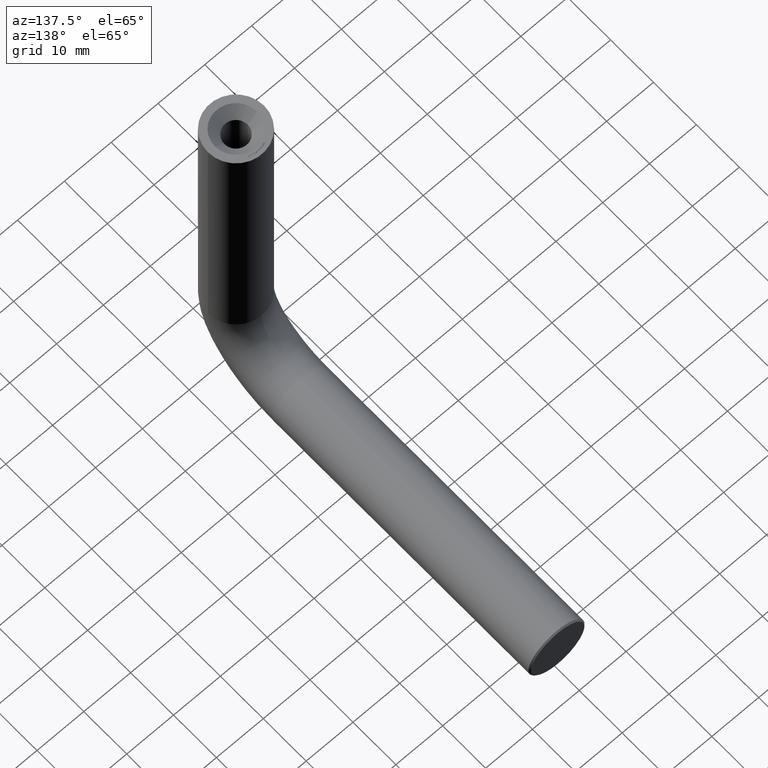
[diagram: clean part render]
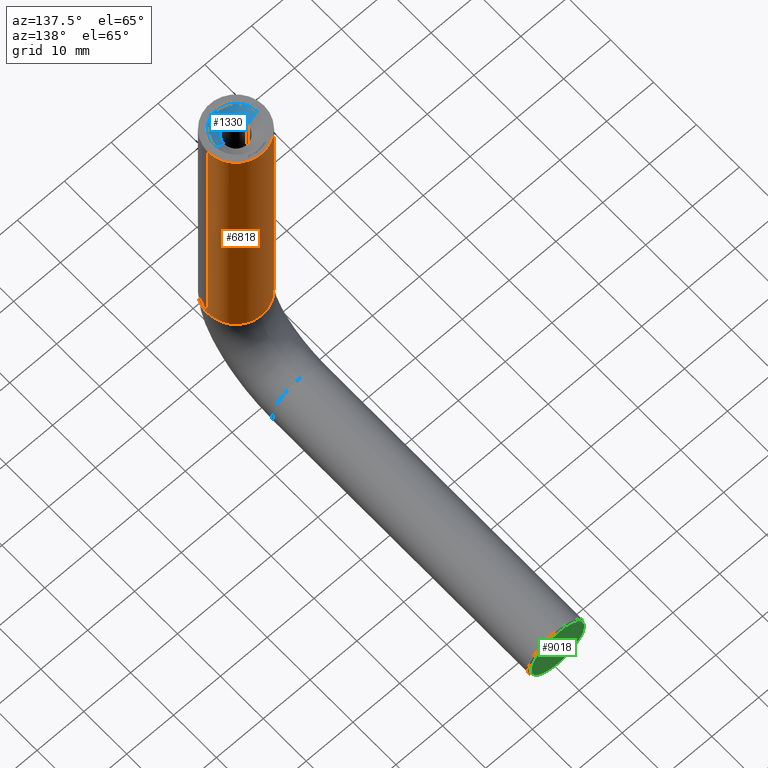
[diagram: same view with three faces highlighted in distinct colors, each labeled with its STEP entity id]
A machine part, auxiliary view with three faces highlighted in distinct colors.
Their STEP definitions:

[orange] entity #6818 — the highlighted cylindrical surface (partial cylindrical patch) has radius 6 mm, axis along (-0, -0, 1).
#44 = LINE ( 'NONE', #1518, #11654 ) ;
#173 = CARTESIAN_POINT ( 'NONE',  ( -6.000000000000000888, 7.347880794884120722E-16, 0.000000000000000000 ) ) ;
#529 = DIRECTION ( 'NONE',  ( -0.000000000000000000, -0.000000000000000000, 1.000000000000000000 ) ) ;
#1067 = AXIS2_PLACEMENT_3D ( 'NONE', #8119, #2488, #9076 ) ;
#1084 = DIRECTION ( 'NONE',  ( 0.000000000000000000, 0.000000000000000000, 1.000000000000000000 ) ) ;
#1192 = VERTEX_POINT ( 'NONE', #7651 ) ;
#1432 = CARTESIAN_POINT ( 'NONE',  ( 6.000000000000000888, 0.000000000000000000, -60.00000000000000000 ) ) ;
#1510 = ORIENTED_EDGE ( 'NONE', *, *, #4404, .T. ) ;
#1518 = CARTESIAN_POINT ( 'NONE',  ( 6.000000000000000888, 0.000000000000000000, -60.00000000000000000 ) ) ;
#1664 = LINE ( 'NONE', #4878, #7075 ) ;
#1760 = CIRCLE ( 'NONE', #1067, 6.000000000000000888 ) ;
#2488 = DIRECTION ( 'NONE',  ( 0.000000000000000000, 0.000000000000000000, 1.000000000000000000 ) ) ;
#2839 = DIRECTION ( 'NONE',  ( -0.000000000000000000, -0.000000000000000000, 1.000000000000000000 ) ) ;
#2937 = EDGE_CURVE ( 'NONE', #4955, #1192, #8272, .T. ) ;
#3098 = FACE_OUTER_BOUND ( 'NONE', #3165, .T. ) ;
#3165 = EDGE_LOOP ( 'NONE', ( #7179, #4725, #1510, #7258, #4913 ) ) ;
#3562 = EDGE_CURVE ( 'NONE', #9867, #9177, #1760, .T. ) ;
#3660 = CARTESIAN_POINT ( 'NONE',  ( 0.000000000000000000, 0.000000000000000000, -60.00000000000000000 ) ) ;
#3838 = DIRECTION ( 'NONE',  ( -0.000000000000000000, -0.000000000000000000, 1.000000000000000000 ) ) ;
#4404 = EDGE_CURVE ( 'NONE', #4515, #9177, #1664, .T. ) ;
#4515 = VERTEX_POINT ( 'NONE', #5319 ) ;
#4725 = ORIENTED_EDGE ( 'NONE', *, *, #8259, .T. ) ;
#4878 = CARTESIAN_POINT ( 'NONE',  ( -6.000000000000000888, 7.347880794884120722E-16, -60.00000000000000000 ) ) ;
#4913 = ORIENTED_EDGE ( 'NONE', *, *, #6173, .F. ) ;
#4955 = VERTEX_POINT ( 'NONE', #1432 ) ;
#5209 = CARTESIAN_POINT ( 'NONE',  ( 6.000000000000000888, 0.000000000000000000, 0.000000000000000000 ) ) ;
#5319 = CARTESIAN_POINT ( 'NONE',  ( -6.000000000000000888, 7.347880794884120722E-16, -60.00000000000000000 ) ) ;
#5343 = AXIS2_PLACEMENT_3D ( 'NONE', #3660, #2839, #7542 ) ;
#6173 = EDGE_CURVE ( 'NONE', #4955, #9867, #44, .T. ) ;
#6768 = CYLINDRICAL_SURFACE ( 'NONE', #5343, 6.000000000000000888 ) ;
#6774 = DIRECTION ( 'NONE',  ( 1.000000000000000000, 0.000000000000000000, 0.000000000000000000 ) ) ;
#6818 = ADVANCED_FACE ( 'NONE', ( #3098 ), #6768, .T. ) ;
#7075 = VECTOR ( 'NONE', #3838, 1000.000000000000000 ) ;
#7179 = ORIENTED_EDGE ( 'NONE', *, *, #2937, .T. ) ;
#7258 = ORIENTED_EDGE ( 'NONE', *, *, #3562, .F. ) ;
#7349 = CIRCLE ( 'NONE', #9423, 6.000000000000000888 ) ;
#7542 = DIRECTION ( 'NONE',  ( 1.000000000000000000, 0.000000000000000000, 0.000000000000000000 ) ) ;
#7651 = CARTESIAN_POINT ( 'NONE',  ( -7.347880794884119736E-16, 6.000000000000000888, -60.00000000000000000 ) ) ;
#8119 = CARTESIAN_POINT ( 'NONE',  ( -0.000000000000000000, 0.000000000000000000, 0.000000000000000000 ) ) ;
#8259 = EDGE_CURVE ( 'NONE', #1192, #4515, #7349, .T. ) ;
#8272 = CIRCLE ( 'NONE', #10126, 6.000000000000000888 ) ;
#9076 = DIRECTION ( 'NONE',  ( 1.000000000000000000, 0.000000000000000000, 0.000000000000000000 ) ) ;
#9153 = DIRECTION ( 'NONE',  ( 1.000000000000000000, 0.000000000000000000, 0.000000000000000000 ) ) ;
#9177 = VERTEX_POINT ( 'NONE', #173 ) ;
#9200 = CARTESIAN_POINT ( 'NONE',  ( 0.000000000000000000, 0.000000000000000000, -60.00000000000000000 ) ) ;
#9423 = AXIS2_PLACEMENT_3D ( 'NONE', #9200, #11862, #9153 ) ;
#9867 = VERTEX_POINT ( 'NONE', #5209 ) ;
#10126 = AXIS2_PLACEMENT_3D ( 'NONE', #11207, #1084, #6774 ) ;
#11207 = CARTESIAN_POINT ( 'NONE',  ( 0.000000000000000000, 0.000000000000000000, -60.00000000000000000 ) ) ;
#11654 = VECTOR ( 'NONE', #529, 1000.000000000000000 ) ;
#11862 = DIRECTION ( 'NONE',  ( 0.000000000000000000, 0.000000000000000000, 1.000000000000000000 ) ) ;

[blue] entity #1330 — the highlighted conical surface has half-angle 45 deg.
#258 = CARTESIAN_POINT ( 'NONE',  ( 4.500000000000000888, 0.000000000000000000, 0.000000000000000000 ) ) ;
#590 = CIRCLE ( 'NONE', #3360, 2.499999999999992895 ) ;
#610 = VECTOR ( 'NONE', #1142, 1000.000000000000000 ) ;
#748 = CARTESIAN_POINT ( 'NONE',  ( 2.499999999999992895, 0.000000000000000000, -2.000000000000005773 ) ) ;
#876 = ORIENTED_EDGE ( 'NONE', *, *, #11355, .T. ) ;
#1142 = DIRECTION ( 'NONE',  ( -0.7071067811865479058, 8.659560562354937789E-17, 0.7071067811865471286 ) ) ;
#1330 = ADVANCED_FACE ( 'NONE', ( #10965 ), #5827, .F. ) ;
#1707 = DIRECTION ( 'NONE',  ( 1.000000000000000000, 0.000000000000000000, 0.000000000000000000 ) ) ;
#2448 = ORIENTED_EDGE ( 'NONE', *, *, #8962, .T. ) ;
#3360 = AXIS2_PLACEMENT_3D ( 'NONE', #11121, #3510, #1707 ) ;
#3476 = DIRECTION ( 'NONE',  ( -0.000000000000000000, -0.000000000000000000, 1.000000000000000000 ) ) ;
#3510 = DIRECTION ( 'NONE',  ( 0.000000000000000000, 0.000000000000000000, -1.000000000000000000 ) ) ;
#3801 = EDGE_LOOP ( 'NONE', ( #2448, #4529, #876, #10388 ) ) ;
#4517 = DIRECTION ( 'NONE',  ( 1.000000000000000000, 0.000000000000000000, 0.000000000000000000 ) ) ;
#4529 = ORIENTED_EDGE ( 'NONE', *, *, #6986, .T. ) ;
#4956 = DIRECTION ( 'NONE',  ( 0.7071067811865479058, 0.000000000000000000, 0.7071067811865471286 ) ) ;
#5192 = LINE ( 'NONE', #258, #8828 ) ;
#5326 = LINE ( 'NONE', #6754, #610 ) ;
#5685 = EDGE_CURVE ( 'NONE', #8254, #9408, #5192, .T. ) ;
#5780 = CARTESIAN_POINT ( 'NONE',  ( -2.499999999999992895, 4.286263797015731665E-16, -2.000000000000005773 ) ) ;
#5827 = CONICAL_SURFACE ( 'NONE', #8905, 4.500000000000000888, 0.7853981633974488341 ) ;
#6435 = VERTEX_POINT ( 'NONE', #7907 ) ;
#6671 = AXIS2_PLACEMENT_3D ( 'NONE', #11969, #3476, #8177 ) ;
#6754 = CARTESIAN_POINT ( 'NONE',  ( -4.500000000000000888, 5.510910596163089556E-16, 0.000000000000000000 ) ) ;
#6986 = EDGE_CURVE ( 'NONE', #11630, #6435, #5326, .T. ) ;
#7812 = CARTESIAN_POINT ( 'NONE',  ( 4.500000000000000888, 0.000000000000000000, 0.000000000000000000 ) ) ;
#7907 = CARTESIAN_POINT ( 'NONE',  ( -4.500000000000000888, 5.510910596163089556E-16, 0.000000000000000000 ) ) ;
#8177 = DIRECTION ( 'NONE',  ( 1.000000000000000000, 0.000000000000000000, 0.000000000000000000 ) ) ;
#8254 = VERTEX_POINT ( 'NONE', #748 ) ;
#8828 = VECTOR ( 'NONE', #4956, 1000.000000000000000 ) ;
#8905 = AXIS2_PLACEMENT_3D ( 'NONE', #8950, #9183, #4517 ) ;
#8950 = CARTESIAN_POINT ( 'NONE',  ( 0.000000000000000000, 0.000000000000000000, 0.000000000000000000 ) ) ;
#8962 = EDGE_CURVE ( 'NONE', #8254, #11630, #590, .T. ) ;
#9183 = DIRECTION ( 'NONE',  ( -0.000000000000000000, -0.000000000000000000, 1.000000000000000000 ) ) ;
#9408 = VERTEX_POINT ( 'NONE', #7812 ) ;
#10388 = ORIENTED_EDGE ( 'NONE', *, *, #5685, .F. ) ;
#10965 = FACE_OUTER_BOUND ( 'NONE', #3801, .T. ) ;
#11121 = CARTESIAN_POINT ( 'NONE',  ( 0.000000000000000000, 0.000000000000000000, -2.000000000000005773 ) ) ;
#11294 = CIRCLE ( 'NONE', #6671, 4.500000000000000888 ) ;
#11355 = EDGE_CURVE ( 'NONE', #6435, #9408, #11294, .T. ) ;
#11630 = VERTEX_POINT ( 'NONE', #5780 ) ;
#11969 = CARTESIAN_POINT ( 'NONE',  ( 0.000000000000000000, 0.000000000000000000, 0.000000000000000000 ) ) ;

[green] entity #9018 — the highlighted planar face has unit normal (0, -1, 0).
#496 = ORIENTED_EDGE ( 'NONE', *, *, #5530, .T. ) ;
#885 = DIRECTION ( 'NONE',  ( 1.000000000000000000, 0.000000000000000000, 0.000000000000000000 ) ) ;
#1845 = ORIENTED_EDGE ( 'NONE', *, *, #10562, .T. ) ;
#1883 = DIRECTION ( 'NONE',  ( -0.000000000000000000, 1.000000000000000000, -6.123233995736766036E-17 ) ) ;
#1916 = FACE_OUTER_BOUND ( 'NONE', #3927, .T. ) ;
#2902 = AXIS2_PLACEMENT_3D ( 'NONE', #12057, #1883, #6477 ) ;
#2973 = AXIS2_PLACEMENT_3D ( 'NONE', #12166, #6616, #885 ) ;
#3445 = VERTEX_POINT ( 'NONE', #8855 ) ;
#3544 = CARTESIAN_POINT ( 'NONE',  ( 0.000000000000000000, 75.00000000000000000, -74.99999999999997158 ) ) ;
#3927 = EDGE_LOOP ( 'NONE', ( #1845, #496 ) ) ;
#4008 = CIRCLE ( 'NONE', #2902, 5.699999999999996625 ) ;
#5493 = DIRECTION ( 'NONE',  ( -0.000000000000000000, 1.000000000000000000, -6.123233995736766036E-17 ) ) ;
#5530 = EDGE_CURVE ( 'NONE', #3445, #8872, #4008, .T. ) ;
#5540 = DIRECTION ( 'NONE',  ( 0.000000000000000000, 0.000000000000000000, -1.000000000000000000 ) ) ;
#6477 = DIRECTION ( 'NONE',  ( 0.000000000000000000, 0.000000000000000000, -1.000000000000000000 ) ) ;
#6616 = DIRECTION ( 'NONE',  ( 0.000000000000000000, -1.000000000000000000, 6.123233995736766036E-17 ) ) ;
#8176 = CIRCLE ( 'NONE', #11916, 5.699999999999996625 ) ;
#8855 = CARTESIAN_POINT ( 'NONE',  ( 7.164183775012013464E-16, 75.00000000000000000, -69.29999999999996874 ) ) ;
#8872 = VERTEX_POINT ( 'NONE', #9788 ) ;
#9018 = ADVANCED_FACE ( 'NONE', ( #1916 ), #10076, .F. ) ;
#9788 = CARTESIAN_POINT ( 'NONE',  ( 0.000000000000000000, 75.00000000000000000, -80.69999999999996021 ) ) ;
#10076 = PLANE ( 'NONE',  #2973 ) ;
#10562 = EDGE_CURVE ( 'NONE', #8872, #3445, #8176, .T. ) ;
#11916 = AXIS2_PLACEMENT_3D ( 'NONE', #3544, #5493, #5540 ) ;
#12057 = CARTESIAN_POINT ( 'NONE',  ( 0.000000000000000000, 75.00000000000000000, -74.99999999999997158 ) ) ;
#12166 = CARTESIAN_POINT ( 'NONE',  ( 0.000000000000000000, 75.00000000000000000, -74.99999999999997158 ) ) ;